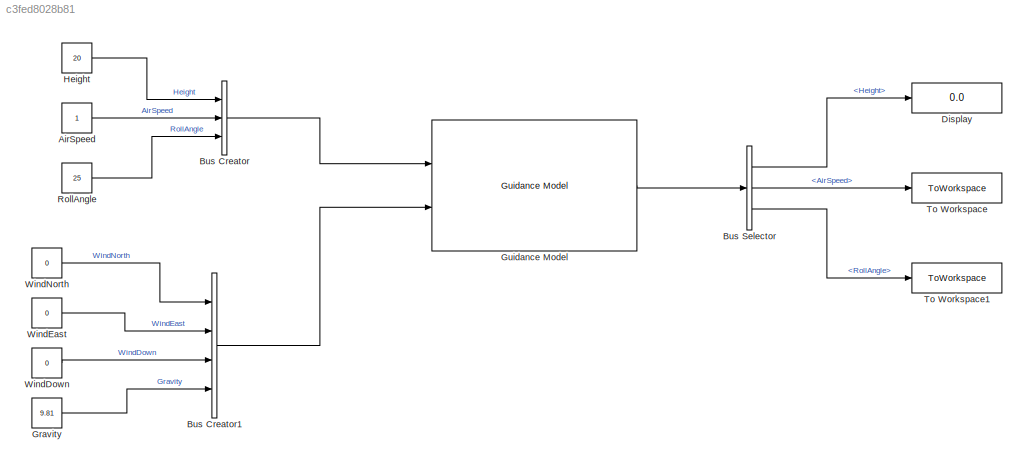
MODEL slx_c3fed8028b81
KIND model
CONFIG AbsTol = auto
CONFIG EnableMultiTasking = off
CONFIG FixedStep = auto
CONFIG MaxStep = auto
CONFIG MinStep = auto
CONFIG RelTol = 1e-3
CONFIG SampleTimeConstraint = Unconstrained
CONFIG SolverName = VariableStepAuto
CONFIG StartTime = 0.0
CONFIG StopTime = 10.0
BLOCK [Constant] AirSpeed
BLOCK [BusCreator] Bus Creator
  DisplayOption = bar
  InheritFromInputs = on
  Inputs = Height,AirSpeed,RollAngle
  NonVirtualBus = on
  OutDataTypeStr = Bus: FixedWingGuidanceControlBus
  Ports = [3, 1]
BLOCK [BusCreator] Bus Creator1
  DisplayOption = bar
  InheritFromInputs = on
  Inputs = WindNorth,WindEast,WindDown,Gravity
  NonVirtualBus = on
  OutDataTypeStr = Bus: FixedWingGuidanceEnvironmentBus
  Ports = [4, 1]
BLOCK [BusSelector] Bus Selector
  OutputSignals = Height,AirSpeed,RollAngle
  Ports = [1, 3]
BLOCK [Display] Display
  Decimation = 1
  Ports = [1]
BLOCK [Constant] Gravity
  Value = 9.81
BLOCK [Reference] Guidance Model  REF=uavalgslib/Guidance Model
  Ports = [2, 1]
  SourceBlock = uavalgslib/Guidance Model
  SourceType = Guidance Model
BLOCK [Constant] Height
  Value = 20
BLOCK [Constant] RollAngle
  Value = 25
BLOCK [ToWorkspace] To Workspace
  FixptAsFi = on
  MaxDataPoints = inf
  Ports = [1]
  SampleTime = -1
  SaveFormat = Timeseries
  VariableName = simout
BLOCK [ToWorkspace] To Workspace1
  FixptAsFi = on
  MaxDataPoints = inf
  Ports = [1]
  SampleTime = -1
  SaveFormat = Timeseries
  VariableName = simout1
BLOCK [Constant] WindDown
  Value = 0
BLOCK [Constant] WindEast
  Value = 0
BLOCK [Constant] WindNorth
  Value = 0
LINE AirSpeed:1 -> Bus Creator:2
LINE Bus Creator1:1 -> Guidance Model:2
LINE Bus Creator:1 -> Guidance Model:1
LINE Bus Selector:1 -> Display:1
LINE Bus Selector:2 -> To Workspace:1
LINE Bus Selector:3 -> To Workspace1:1
LINE Gravity:1 -> Bus Creator1:4
LINE Guidance Model:1 -> Bus Selector:1
LINE Height:1 -> Bus Creator:1
LINE RollAngle:1 -> Bus Creator:3
LINE WindDown:1 -> Bus Creator1:3
LINE WindEast:1 -> Bus Creator1:2
LINE WindNorth:1 -> Bus Creator1:1
